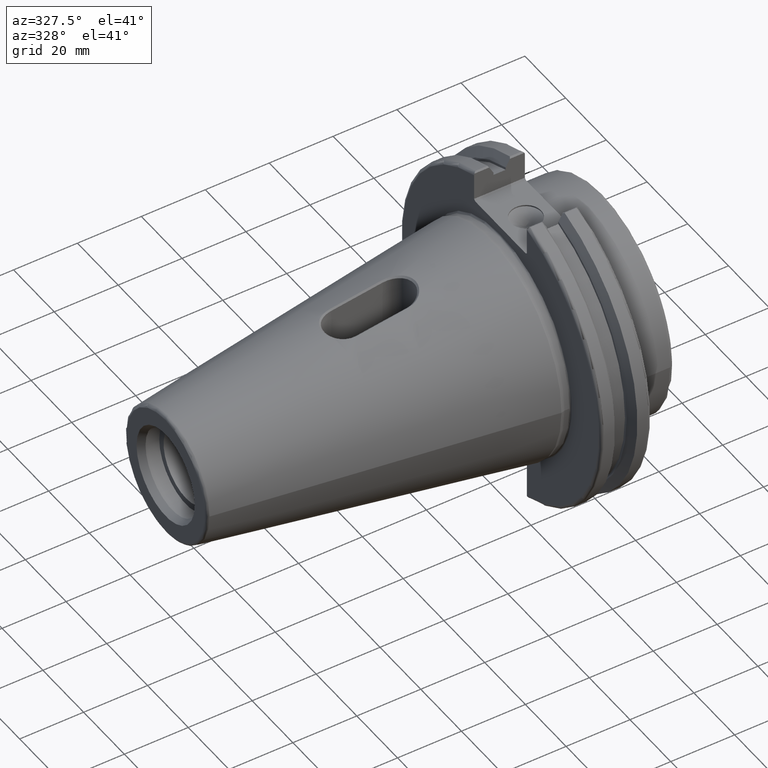
[diagram: clean part render]
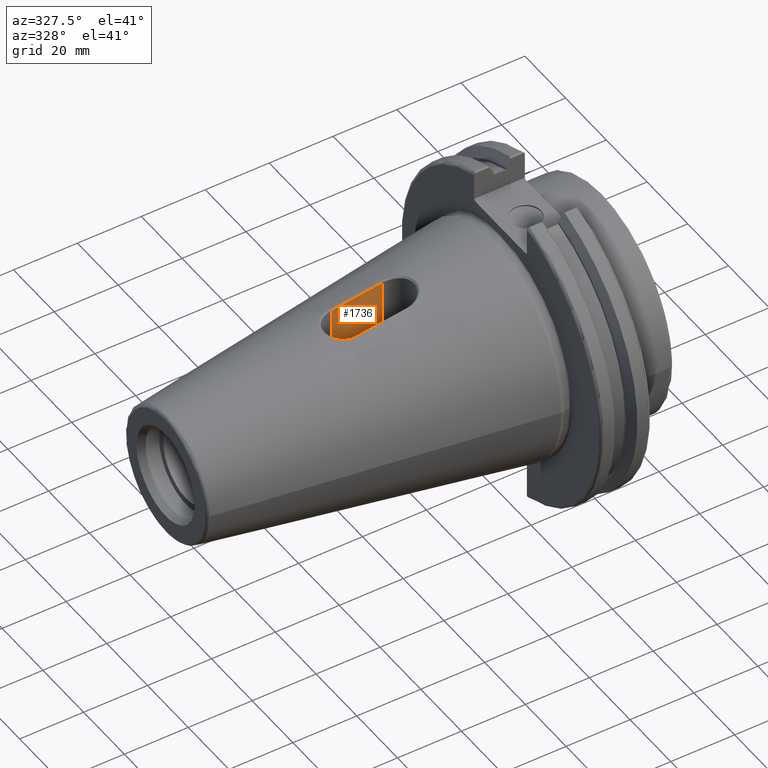
[diagram: same view with one face highlighted and labeled with its STEP entity id]
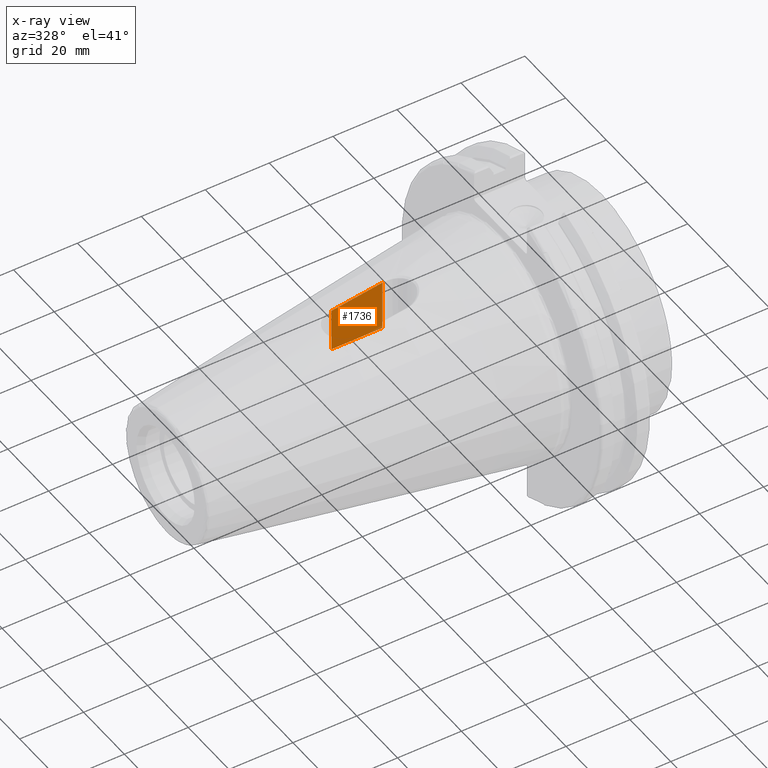
[diagram: x-ray of the same camera — body ghosted, the highlighted face saturated]
A machine part, auxiliary view. The second image highlights one B-rep face of the part: STEP entity #1736.
The next image is the same camera in x-ray: the body ghosted, the highlighted face saturated — about 1% of this face is hidden behind the body in this view.
In plain terms, the highlighted planar face has unit normal (-0, 1, 0).
Its self-contained STEP definition (entity closure, byte-faithful):
#79=B_SPLINE_CURVE_WITH_KNOTS('',3,(#3053,#3054,#3055,#3056),
 .UNSPECIFIED.,.F.,.F.,(4,4),(-9.22315231479342E-16,1.61052120064359),
 .UNSPECIFIED.);
#80=B_SPLINE_CURVE_WITH_KNOTS('',3,(#3073,#3074,#3075,#3076),
 .UNSPECIFIED.,.F.,.F.,(4,4),(0.0114344754419962,0.018709150903681),
 .UNSPECIFIED.);
#157=PLANE('',#1861);
#223=FACE_OUTER_BOUND('',#327,.T.);
#327=EDGE_LOOP('',(#1310,#1311,#1312,#1313,#1314));
#438=LINE('',#3252,#560);
#439=LINE('',#3254,#561);
#440=LINE('',#3255,#562);
#560=VECTOR('',#2082,10.);
#561=VECTOR('',#2083,10.);
#562=VECTOR('',#2084,10.);
#768=VERTEX_POINT('',#3014);
#769=VERTEX_POINT('',#3049);
#770=VERTEX_POINT('',#3051);
#775=VERTEX_POINT('',#3251);
#776=VERTEX_POINT('',#3253);
#967=EDGE_CURVE('',#770,#769,#79,.T.);
#968=EDGE_CURVE('',#768,#770,#80,.T.);
#978=EDGE_CURVE('',#775,#768,#438,.T.);
#979=EDGE_CURVE('',#776,#775,#439,.T.);
#980=EDGE_CURVE('',#776,#769,#440,.T.);
#1310=ORIENTED_EDGE('',*,*,#967,.F.);
#1311=ORIENTED_EDGE('',*,*,#968,.F.);
#1312=ORIENTED_EDGE('',*,*,#978,.F.);
#1313=ORIENTED_EDGE('',*,*,#979,.F.);
#1314=ORIENTED_EDGE('',*,*,#980,.T.);
#1736=ADVANCED_FACE('',(#223),#157,.F.);
#1861=AXIS2_PLACEMENT_3D('',#3250,#2080,#2081);
#2080=DIRECTION('center_axis',(-6.93889390390723E-17,1.,0.));
#2081=DIRECTION('ref_axis',(-1.,-6.93889390390723E-17,0.));
#2082=DIRECTION('',(0.,0.,1.));
#2083=DIRECTION('',(-1.,-6.93889390390723E-17,0.));
#2084=DIRECTION('',(0.,0.,1.));
#3014=CARTESIAN_POINT('',(-45.95,6.,27.073388633403));
#3049=CARTESIAN_POINT('',(-29.9499999999995,6.,29.4569445163737));
#3051=CARTESIAN_POINT('',(-45.8761950908697,6.,27.0843064357119));
#3053=CARTESIAN_POINT('Ctrl Pts',(-45.8761950908697,6.,27.0843064357119));
#3054=CARTESIAN_POINT('Ctrl Pts',(-40.7822459642643,6.,27.8445513121593));
#3055=CARTESIAN_POINT('Ctrl Pts',(-35.4821756132942,6.,28.6341403239841));
#3056=CARTESIAN_POINT('Ctrl Pts',(-29.9499999999994,6.,29.4569445163736));
#3073=CARTESIAN_POINT('Ctrl Pts',(-45.95,6.,27.073388633403));
#3074=CARTESIAN_POINT('Ctrl Pts',(-45.9254357488521,6.,27.0769898821074));
#3075=CARTESIAN_POINT('Ctrl Pts',(-45.9008346668595,6.,27.0806291097437));
#3076=CARTESIAN_POINT('Ctrl Pts',(-45.8761950908697,6.,27.0843064357119));
#3250=CARTESIAN_POINT('Origin',(-29.95,6.,13.6227));
#3251=CARTESIAN_POINT('',(-45.95,6.,13.6227));
#3252=CARTESIAN_POINT('',(-45.95,6.,13.6227));
#3253=CARTESIAN_POINT('',(-29.95,6.,13.6227));
#3254=CARTESIAN_POINT('',(-29.95,6.,13.6227));
#3255=CARTESIAN_POINT('',(-29.95,6.,13.6227));